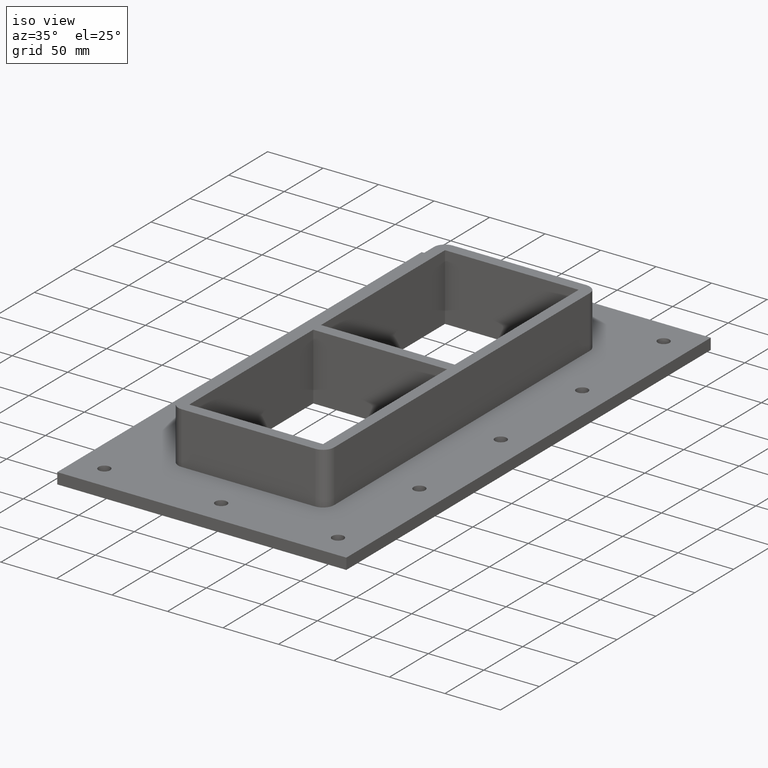
[diagram: clean part render]
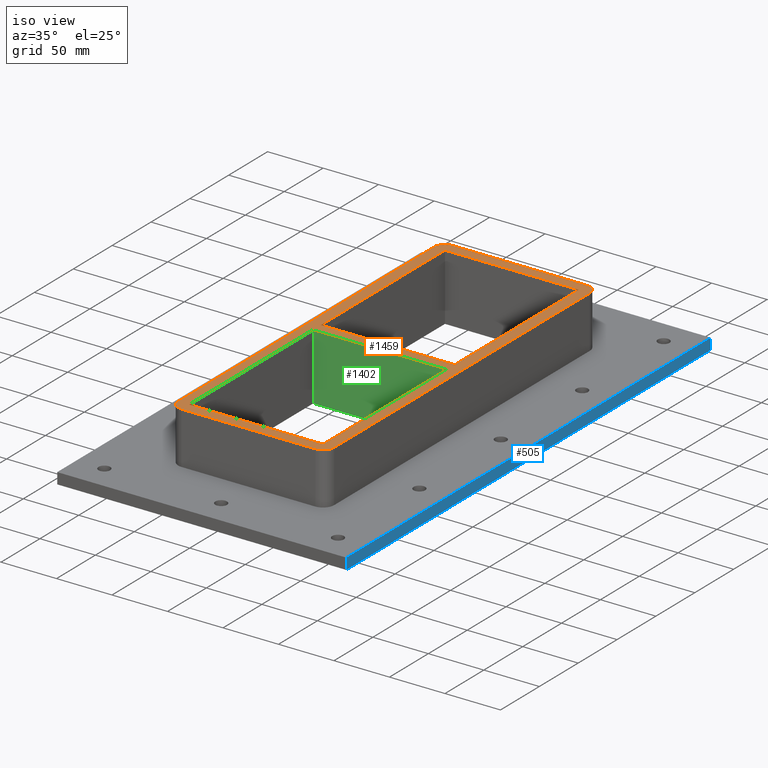
[diagram: same view with three faces highlighted in distinct colors, each labeled with its STEP entity id]
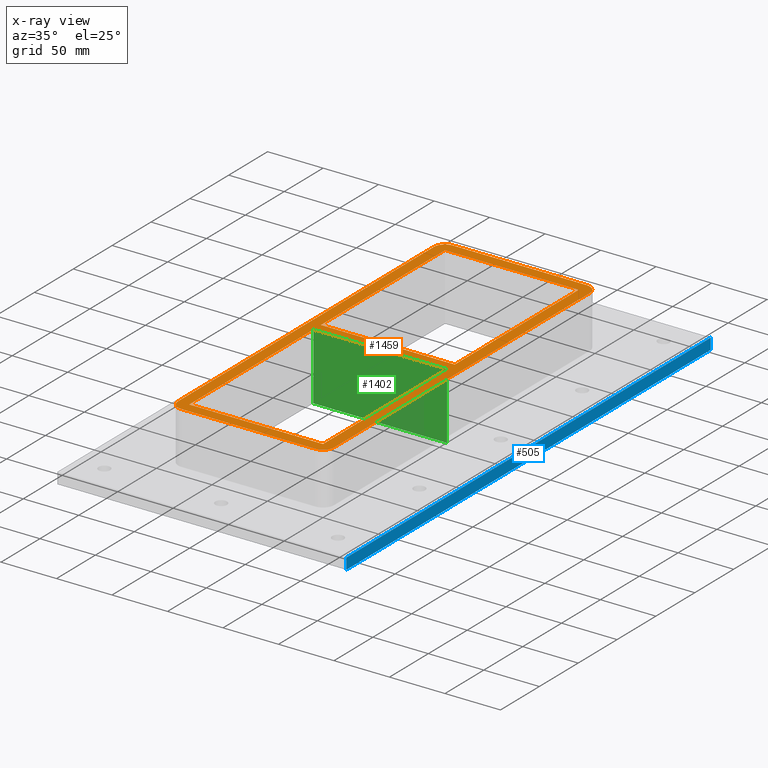
[diagram: x-ray of the same camera — body ghosted, the three highlighted faces saturated]
A machine part, iso view with three faces highlighted in distinct colors.
The next image is the same camera in x-ray (body ghosted, the three faces saturated) — at least one of them is partly hidden behind the body in this view.
Their STEP definitions:

[orange] entity #1459 — the highlighted planar face has unit normal (0, 0, 1).
#802=CARTESIAN_POINT('',(70.250000000000057,-164.5,30.0));
#803=VERTEX_POINT('',#802);
#810=CARTESIAN_POINT('',(60.250000000000057,-174.5,30.0));
#811=VERTEX_POINT('',#810);
#812=CARTESIAN_POINT('',(60.250000000000057,-164.5,30.0));
#813=DIRECTION('',(0.0,0.0,-1.0));
#814=DIRECTION('',(0.707106781186547,-0.707106781186547,0.0));
#815=AXIS2_PLACEMENT_3D('',#812,#813,#814);
#816=CIRCLE('',#815,9.999999999999998);
#817=EDGE_CURVE('',#803,#811,#816,.T.);
#858=CARTESIAN_POINT('',(70.249999999999986,164.49999999999991,30.0));
#859=VERTEX_POINT('',#858);
#866=CARTESIAN_POINT('',(70.250000000000057,-164.5,30.0));
#867=DIRECTION('',(0.0,1.0,0.0));
#868=VECTOR('',#867,328.99999999999989);
#869=LINE('',#866,#868);
#870=EDGE_CURVE('',#803,#859,#869,.T.);
#907=CARTESIAN_POINT('',(60.249999999999986,174.49999999999994,30.0));
#908=VERTEX_POINT('',#907);
#915=CARTESIAN_POINT('',(60.249999999999986,164.49999999999994,30.0));
#916=DIRECTION('',(0.0,0.0,-1.0));
#917=DIRECTION('',(0.707106781186547,0.707106781186547,0.0));
#918=AXIS2_PLACEMENT_3D('',#915,#916,#917);
#919=CIRCLE('',#918,9.999999999999998);
#920=EDGE_CURVE('',#908,#859,#919,.T.);
#956=CARTESIAN_POINT('',(-60.249999999999986,174.5,30.0));
#957=VERTEX_POINT('',#956);
#964=CARTESIAN_POINT('',(60.249999999999986,174.49999999999994,30.0));
#965=DIRECTION('',(-1.0,0.0,0.0));
#966=VECTOR('',#965,120.49999999999997);
#967=LINE('',#964,#966);
#968=EDGE_CURVE('',#908,#957,#967,.T.);
#1110=CARTESIAN_POINT('',(-60.249999999999915,-174.5,30.0));
#1111=VERTEX_POINT('',#1110);
#1112=CARTESIAN_POINT('',(-60.249999999999915,-174.5,30.0));
#1113=DIRECTION('',(1.0,0.0,0.0));
#1114=VECTOR('',#1113,120.49999999999997);
#1115=LINE('',#1112,#1114);
#1116=EDGE_CURVE('',#1111,#811,#1115,.T.);
#1134=CARTESIAN_POINT('',(-70.249999999999915,-164.5,30.0));
#1135=VERTEX_POINT('',#1134);
#1136=CARTESIAN_POINT('',(-60.249999999999915,-164.5,30.0));
#1137=DIRECTION('',(0.0,0.0,-1.0));
#1138=DIRECTION('',(-0.707106781186547,-0.707106781186547,0.0));
#1139=AXIS2_PLACEMENT_3D('',#1136,#1137,#1138);
#1140=CIRCLE('',#1139,9.999999999999998);
#1141=EDGE_CURVE('',#1111,#1135,#1140,.T.);
#1158=CARTESIAN_POINT('',(-70.249999999999986,164.49999999999994,30.0));
#1159=VERTEX_POINT('',#1158);
#1166=CARTESIAN_POINT('',(-60.249999999999986,164.49999999999994,30.0));
#1167=DIRECTION('',(0.0,0.0,-1.0));
#1168=DIRECTION('',(-0.707106781186547,0.707106781186547,0.0));
#1169=AXIS2_PLACEMENT_3D('',#1166,#1167,#1168);
#1170=CIRCLE('',#1169,9.999999999999998);
#1171=EDGE_CURVE('',#1159,#957,#1170,.T.);
#1217=CARTESIAN_POINT('',(-60.24999999999995,164.50000000000003,30.0));
#1218=VERTEX_POINT('',#1217);
#1225=CARTESIAN_POINT('',(-60.24999999999995,5.000000000000107,30.0));
#1226=VERTEX_POINT('',#1225);
#1227=CARTESIAN_POINT('',(-60.24999999999995,5.000000000000107,30.0));
#1228=DIRECTION('',(0.0,1.0,0.0));
#1229=VECTOR('',#1228,159.49999999999994);
#1230=LINE('',#1227,#1229);
#1231=EDGE_CURVE('',#1226,#1218,#1230,.T.);
#1249=CARTESIAN_POINT('',(60.250000000000021,5.000000000000036,30.0));
#1250=VERTEX_POINT('',#1249);
#1251=CARTESIAN_POINT('',(60.250000000000021,5.000000000000036,30.0));
#1252=DIRECTION('',(-1.0,0.0,0.0));
#1253=VECTOR('',#1252,120.49999999999997);
#1254=LINE('',#1251,#1253);
#1255=EDGE_CURVE('',#1250,#1226,#1254,.T.);
#1273=CARTESIAN_POINT('',(60.250000000000021,164.50000000000003,30.0));
#1274=VERTEX_POINT('',#1273);
#1275=CARTESIAN_POINT('',(60.250000000000021,164.50000000000003,30.0));
#1276=DIRECTION('',(0.0,-1.0,0.0));
#1277=VECTOR('',#1276,159.5);
#1278=LINE('',#1275,#1277);
#1279=EDGE_CURVE('',#1274,#1250,#1278,.T.);
#1297=CARTESIAN_POINT('',(-60.24999999999995,164.50000000000003,30.0));
#1298=DIRECTION('',(1.0,0.0,0.0));
#1299=VECTOR('',#1298,120.49999999999997);
#1300=LINE('',#1297,#1299);
#1301=EDGE_CURVE('',#1218,#1274,#1300,.T.);
#1313=CARTESIAN_POINT('',(-60.249999999999915,-4.999999999999965,30.0));
#1314=VERTEX_POINT('',#1313);
#1321=CARTESIAN_POINT('',(-60.249999999999915,-164.49999999999989,30.0));
#1322=VERTEX_POINT('',#1321);
#1323=CARTESIAN_POINT('',(-60.249999999999915,-164.49999999999989,30.0));
#1324=DIRECTION('',(0.0,1.0,0.0));
#1325=VECTOR('',#1324,159.49999999999991);
#1326=LINE('',#1323,#1325);
#1327=EDGE_CURVE('',#1322,#1314,#1326,.T.);
#1345=CARTESIAN_POINT('',(60.250000000000057,-164.49999999999994,30.0));
#1346=VERTEX_POINT('',#1345);
#1347=CARTESIAN_POINT('',(60.250000000000057,-164.49999999999997,30.0));
#1348=DIRECTION('',(-1.0,0.0,0.0));
#1349=VECTOR('',#1348,120.49999999999997);
#1350=LINE('',#1347,#1349);
#1351=EDGE_CURVE('',#1346,#1322,#1350,.T.);
#1369=CARTESIAN_POINT('',(60.250000000000057,-4.999999999999947,30.0));
#1370=VERTEX_POINT('',#1369);
#1371=CARTESIAN_POINT('',(60.250000000000057,-4.999999999999947,30.0));
#1372=DIRECTION('',(0.0,-1.0,0.0));
#1373=VECTOR('',#1372,159.50000000000003);
#1374=LINE('',#1371,#1373);
#1375=EDGE_CURVE('',#1370,#1346,#1374,.T.);
#1393=CARTESIAN_POINT('',(-60.249999999999915,-4.999999999999965,30.0));
#1394=DIRECTION('',(1.0,0.0,0.0));
#1395=VECTOR('',#1394,120.49999999999997);
#1396=LINE('',#1393,#1395);
#1397=EDGE_CURVE('',#1314,#1370,#1396,.T.);
#1410=CARTESIAN_POINT('',(-70.249999999999986,164.49999999999997,30.0));
#1411=DIRECTION('',(0.0,-1.0,0.0));
#1412=VECTOR('',#1411,329.0);
#1413=LINE('',#1410,#1412);
#1414=EDGE_CURVE('',#1159,#1135,#1413,.T.);
#1432=CARTESIAN_POINT('',(3.048294E-014,-1.741882E-014,30.0));
#1433=DIRECTION('',(0.0,0.0,1.0));
#1434=DIRECTION('',(1.0,0.0,0.0));
#1435=AXIS2_PLACEMENT_3D('',#1432,#1433,#1434);
#1436=PLANE('',#1435);
#1437=ORIENTED_EDGE('',*,*,#817,.F.);
#1438=ORIENTED_EDGE('',*,*,#870,.T.);
#1439=ORIENTED_EDGE('',*,*,#920,.F.);
#1440=ORIENTED_EDGE('',*,*,#968,.T.);
#1441=ORIENTED_EDGE('',*,*,#1171,.F.);
#1442=ORIENTED_EDGE('',*,*,#1414,.T.);
#1443=ORIENTED_EDGE('',*,*,#1141,.F.);
#1444=ORIENTED_EDGE('',*,*,#1116,.T.);
#1445=EDGE_LOOP('',(#1437,#1438,#1439,#1440,#1441,#1442,#1443,#1444));
#1446=FACE_OUTER_BOUND('',#1445,.T.);
#1447=ORIENTED_EDGE('',*,*,#1231,.T.);
#1448=ORIENTED_EDGE('',*,*,#1301,.T.);
#1449=ORIENTED_EDGE('',*,*,#1279,.T.);
#1450=ORIENTED_EDGE('',*,*,#1255,.T.);
#1451=EDGE_LOOP('',(#1447,#1448,#1449,#1450));
#1452=FACE_BOUND('',#1451,.T.);
#1453=ORIENTED_EDGE('',*,*,#1375,.T.);
#1454=ORIENTED_EDGE('',*,*,#1351,.T.);
#1455=ORIENTED_EDGE('',*,*,#1327,.T.);
#1456=ORIENTED_EDGE('',*,*,#1397,.T.);
#1457=EDGE_LOOP('',(#1453,#1454,#1455,#1456));
#1458=FACE_BOUND('',#1457,.T.);
#1459=ADVANCED_FACE('',(#1446,#1452,#1458),#1436,.T.);

[blue] entity #505 — the highlighted planar face has unit normal (1, 0, 0).
#449=CARTESIAN_POINT('',(130.25,234.50000000000006,-27.0));
#450=VERTEX_POINT('',#449);
#458=CARTESIAN_POINT('',(130.25,234.50000000000003,-17.0));
#459=VERTEX_POINT('',#458);
#466=CARTESIAN_POINT('',(130.25,234.50000000000006,-27.0));
#467=DIRECTION('',(0.0,0.0,1.0));
#468=VECTOR('',#467,10.0);
#469=LINE('',#466,#468);
#470=EDGE_CURVE('',#450,#459,#469,.T.);
#475=CARTESIAN_POINT('',(130.25,-234.5,-27.0));
#476=DIRECTION('',(1.0,0.0,0.0));
#477=DIRECTION('',(0.0,1.0,0.0));
#478=AXIS2_PLACEMENT_3D('',#475,#476,#477);
#479=PLANE('',#478);
#480=CARTESIAN_POINT('',(130.25,-234.50000000000003,-27.0));
#481=VERTEX_POINT('',#480);
#482=CARTESIAN_POINT('',(130.25,234.50000000000006,-27.0));
#483=DIRECTION('',(0.0,-1.0,0.0));
#484=VECTOR('',#483,469.00000000000006);
#485=LINE('',#482,#484);
#486=EDGE_CURVE('',#450,#481,#485,.T.);
#487=ORIENTED_EDGE('',*,*,#486,.F.);
#488=ORIENTED_EDGE('',*,*,#470,.T.);
#489=CARTESIAN_POINT('',(130.25,-234.50000000000003,-17.0));
#490=VERTEX_POINT('',#489);
#491=CARTESIAN_POINT('',(130.25,-234.5,-17.0));
#492=DIRECTION('',(0.0,1.0,0.0));
#493=VECTOR('',#492,469.00000000000006);
#494=LINE('',#491,#493);
#495=EDGE_CURVE('',#490,#459,#494,.T.);
#496=ORIENTED_EDGE('',*,*,#495,.F.);
#497=CARTESIAN_POINT('',(130.25,-234.50000000000003,-27.0));
#498=DIRECTION('',(0.0,0.0,1.0));
#499=VECTOR('',#498,10.0);
#500=LINE('',#497,#499);
#501=EDGE_CURVE('',#481,#490,#500,.T.);
#502=ORIENTED_EDGE('',*,*,#501,.F.);
#503=EDGE_LOOP('',(#487,#488,#496,#502));
#504=FACE_OUTER_BOUND('',#503,.T.);
#505=ADVANCED_FACE('',(#504),#479,.T.);

[green] entity #1402 — the highlighted planar face has unit normal (0, 1, 0).
#1070=CARTESIAN_POINT('',(60.250000000000057,-4.999999999999947,-30.0));
#1071=VERTEX_POINT('',#1070);
#1078=CARTESIAN_POINT('',(-60.249999999999915,-4.999999999999965,-30.0));
#1079=VERTEX_POINT('',#1078);
#1080=CARTESIAN_POINT('',(60.250000000000057,-4.999999999999947,-30.0));
#1081=DIRECTION('',(-1.0,0.0,0.0));
#1082=VECTOR('',#1081,120.49999999999997);
#1083=LINE('',#1080,#1082);
#1084=EDGE_CURVE('',#1071,#1079,#1083,.T.);
#1313=CARTESIAN_POINT('',(-60.249999999999915,-4.999999999999965,30.0));
#1314=VERTEX_POINT('',#1313);
#1315=CARTESIAN_POINT('',(-60.249999999999915,-4.999999999999965,30.0));
#1316=DIRECTION('',(0.0,0.0,-1.0));
#1317=VECTOR('',#1316,60.0);
#1318=LINE('',#1315,#1317);
#1319=EDGE_CURVE('',#1314,#1079,#1318,.T.);
#1369=CARTESIAN_POINT('',(60.250000000000057,-4.999999999999947,30.0));
#1370=VERTEX_POINT('',#1369);
#1377=CARTESIAN_POINT('',(60.250000000000057,-4.999999999999947,30.0));
#1378=DIRECTION('',(0.0,0.0,-1.0));
#1379=VECTOR('',#1378,60.0);
#1380=LINE('',#1377,#1379);
#1381=EDGE_CURVE('',#1370,#1071,#1380,.T.);
#1386=CARTESIAN_POINT('',(-60.249999999999915,-4.999999999999965,30.0));
#1387=DIRECTION('',(0.0,1.0,0.0));
#1388=DIRECTION('',(1.0,0.0,0.0));
#1389=AXIS2_PLACEMENT_3D('',#1386,#1387,#1388);
#1390=PLANE('',#1389);
#1391=ORIENTED_EDGE('',*,*,#1084,.F.);
#1392=ORIENTED_EDGE('',*,*,#1381,.F.);
#1393=CARTESIAN_POINT('',(-60.249999999999915,-4.999999999999965,30.0));
#1394=DIRECTION('',(1.0,0.0,0.0));
#1395=VECTOR('',#1394,120.49999999999997);
#1396=LINE('',#1393,#1395);
#1397=EDGE_CURVE('',#1314,#1370,#1396,.T.);
#1398=ORIENTED_EDGE('',*,*,#1397,.F.);
#1399=ORIENTED_EDGE('',*,*,#1319,.T.);
#1400=EDGE_LOOP('',(#1391,#1392,#1398,#1399));
#1401=FACE_OUTER_BOUND('',#1400,.T.);
#1402=ADVANCED_FACE('',(#1401),#1390,.F.);